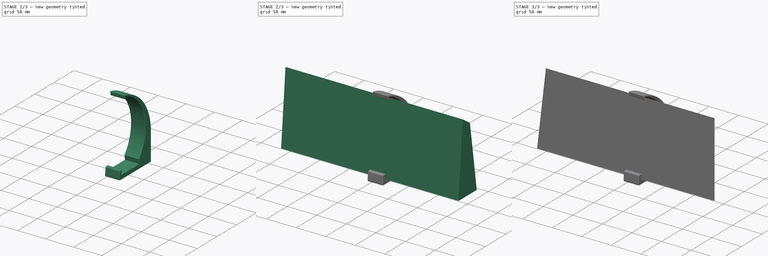
[diagram: build sequence overview — one tinted view per stage of 3, left to right]
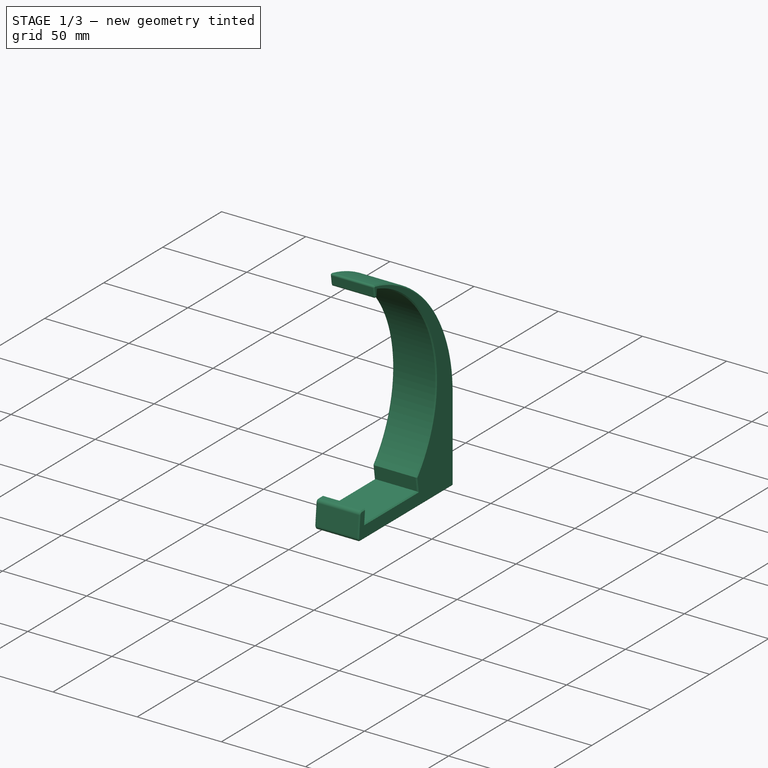
[diagram: stage 1 of 3 — iso view after this stage's code; geometry added in this stage tinted green]
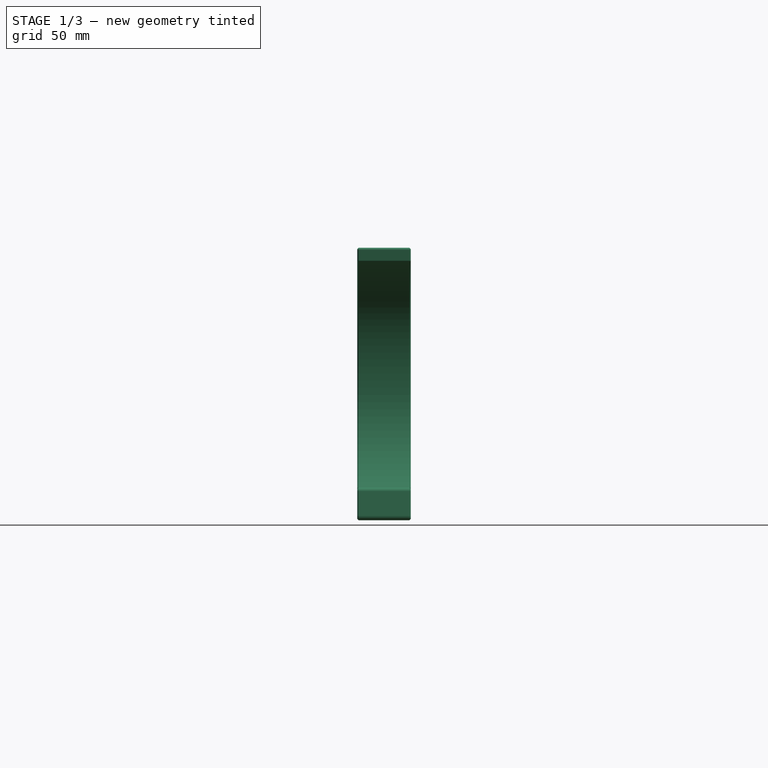
[diagram: stage 1 of 3 — front view after this stage's code; geometry added in this stage tinted green]
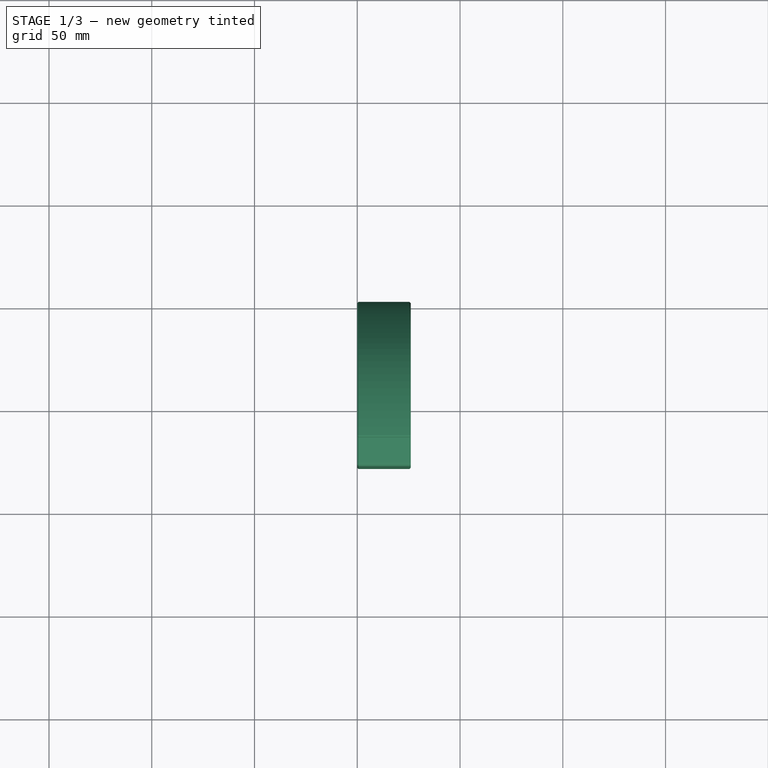
[diagram: stage 1 of 3 — top view after this stage's code; geometry added in this stage tinted green]
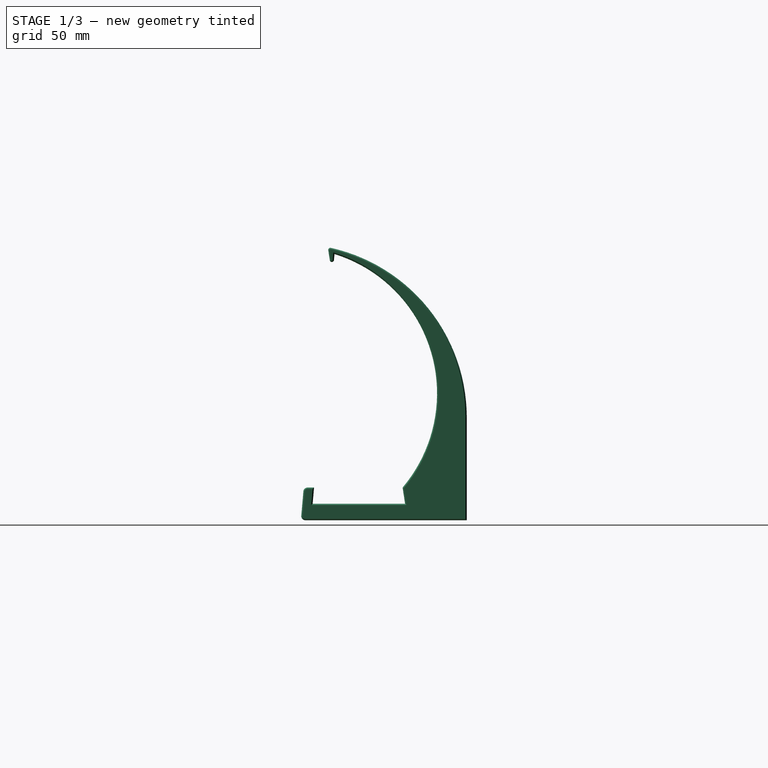
[diagram: stage 1 of 3 — right view after this stage's code; geometry added in this stage tinted green]
FCSTD DOCUMENT  (FreeCAD 0.22R36677 (Git))
Label: starlink gen3 wall mount
License: All rights reserved
LicenseURL: http://en.wikipedia.org/wiki/All_rights_reserved
objects: Sketcher::SketchObject×5, PartDesign::Pocket×3, PartDesign::Pad×2, PartDesign::Body×2, PartDesign::Mirrored×1, Spreadsheet::Sheet×1, PartDesign::Chamfer×1
note: 20 computed .brp shape members not serialized (recipe doc carries the construction recipe); baked Part::Feature solids carry a one-line shape summary decoded from their .brp

FEATURE [PartDesign::Body] Body  label="starlink gen3 router proxy"
  Group = -> [Sketch,Pad,Sketch001,Pocket,Mirrored]
  Origin = -> Origin
  Tip = -> Mirrored
FEATURE [Spreadsheet::Sheet] Spreadsheet  label="q"
  cells = A2='router front length; B2(router_front_length)=121; A3='router front angle; B3(router_front_angle)=85; A4='router back length; B4(router_back_length)=110; A5='router back angle; B5(router_back_angle)=81.4; A6='router base width; B6(router_base_width)=300; A7='router base depth; B7(router_base_depth)=44; A9='fudge; B9(fudge)=1; A10='mount bottom thickness; B10(mount_bottom_thickness)=8; A11='mount back thickness; B11(mount_back_thickness)=8; A12='mount base overlap; B12(mount_base_overlap)=8; A13='mount_top_overlap; B13(mount_top_overlap)=3; A14='mount back allowance; B14(mount_back_allowance)=30; A16='screw hole diameter; B16(screw_hole_diameter)=4.5; A17='screw head diameter; B17(screw_head_diameter)=8.5; A18='screw to wall depth; B18(screw_to_wall_depth)=5
FEATURE [Sketcher::SketchObject] Sketch007
  AttachmentSupport = -> [YZ_Plane003]
  FullyConstrained = true
  MapMode = 5
  Placement = pos=(0,0,0) rot=(0.57735,0.57735,0.57735;2.0944rad)
  expr: Constraints[14] = <<q>>.mount_back_allowance
  expr: Constraints[16] = <<q>>.mount_base_overlap
  expr: Constraints[27] = <<q>>.mount_bottom_thickness
  expr: Constraints[32] = <<q>>.mount_top_overlap
  expr: Constraints[35] = <<q>>.mount_top_overlap
  expr: Constraints[36] = <<q>>.mount_top_overlap
  expr: Constraints[5] = <<q>>.router_front_length + <<q>>.fudge
  expr: Constraints[6] = <<q>>.router_back_length + <<q>>.fudge
  expr: Constraints[7] = <<q>>.router_back_angle
  expr: Constraints[8] = <<q>>.router_front_angle
  expr: Constraints[9] = <<q>>.router_base_depth + <<q>>.fudge
  sketch-geometry (25):
    g0: LineSegment StartX=-22.5 StartY=-5.7e-15 StartZ=0 EndX=22.5 EndY=-5.7e-15 EndZ=0
    g1: LineSegment StartX=22.5 StartY=-5.7e-15 StartZ=0 EndX=5.90158 EndY=109.752 EndZ=0
    g2: LineSegment StartX=5.90158 StartY=109.752 StartZ=0 EndX=-11.867 EndY=121.536 EndZ=0
    g3: LineSegment StartX=-11.867 StartY=121.536 StartZ=0 EndX=-22.5 EndY=-5.7e-15 EndZ=0
    g4: LineSegment StartX=52.5 StartY=0 StartZ=0 EndX=52.5 EndY=120 EndZ=0
    g5: GeomPoint X=21.3037 Y=7.91005 Z=0
    g6: ArcOfCircle CenterX=-32.9304 CenterY=53.7321 CenterZ=0 NormalX=0 NormalY=0 NormalZ=1 AngleXU=0 Radius=71 StartAngle=5.58166 EndAngle=7.55278
    g7: GeomPoint X=-22.5 Y=-5.7e-15 Z=0
    g8: GeomPoint X=-21.808 Y=7.91005 Z=0
    g9: LineSegment StartX=-21.808 StartY=7.91005 StartZ=0 EndX=-24.9753 EndY=7.91005 EndZ=0
    g10: LineSegment StartX=-26.9677 StartY=6.08436 StartZ=0 EndX=-28.0097 EndY=-5.82569 EndZ=0
    g11: LineSegment StartX=-26.0173 StartY=-8 StartZ=0 EndX=52.5 EndY=-8 EndZ=0
    g12: LineSegment StartX=52.5 StartY=-8 StartZ=0 EndX=52.5 EndY=42 EndZ=0
    g13: LineSegment StartX=-11.867 StartY=121.536 StartZ=0 EndX=-12.1295 EndY=118.536 EndZ=0
    g14: ArcOfCircle CenterX=-13.1257 CenterY=118.623 CenterZ=0 NormalX=0 NormalY=0 NormalZ=1 AngleXU=0 Radius=1 StartAngle=3.29291 EndAngle=6.19592
    g15: LineSegment StartX=-14.1142 StartY=118.472 StartZ=0 EndX=-14.867 EndY=123.409 EndZ=0
    g16: ArcOfCircle CenterX=-13.8784 CenterY=123.56 CenterZ=0 NormalX=0 NormalY=0 NormalZ=1 AngleXU=0 Radius=1 StartAngle=1.35143 EndAngle=3.29291
    g17: LineSegment StartX=-21.808 StartY=7.91005 StartZ=0 EndX=-22.5 EndY=-5e-15 EndZ=0
    g18: LineSegment StartX=-22.5 StartY=-5.7e-15 StartZ=0 EndX=22.5 EndY=-5.7e-15 EndZ=0
    g19: LineSegment StartX=22.5 StartY=-5.7e-15 StartZ=0 EndX=21.3037 EndY=7.91005 EndZ=0
    g20: ArcOfCircle CenterX=-24.9753 CenterY=5.91005 CenterZ=0 NormalX=0 NormalY=0 NormalZ=1 AngleXU=0 Radius=2 StartAngle=1.5708 EndAngle=3.05433
    g21: GeomPoint X=-26.808 Y=7.91005 Z=0
    g22: ArcOfCircle CenterX=-26.0173 CenterY=-6 CenterZ=0 NormalX=0 NormalY=0 NormalZ=1 AngleXU=0 Radius=2 StartAngle=3.05433 EndAngle=4.71239
    g23: GeomPoint X=-28.1999 Y=-8 Z=0
    g24: ArcOfCircle CenterX=-32.0622 CenterY=42 CenterZ=0 NormalX=0 NormalY=0 NormalZ=1 AngleXU=0 Radius=84.5622 StartAngle=0 EndAngle=1.35143
  constraints (61):
    c: Horizontal(g0)
    c: Coincident(g0,g1)
    c: Coincident(g1,g2)
    c: Coincident(g2,g3)
    c: Coincident(g3,g0)
    c: Distance(g3,g3) = 122
    c: Distance(g1,g1) = 111
    c: Angle(g1,g0) = 1.4207
    c: Angle(g0,g3) = 1.48353
    c: DistanceX(g0,g0) = 45
    c: Symmetric(g0,g0,g-1)
    c: PointOnObject(g4,g-1)
    c: Vertical(g4)
    c: DistanceY(g4,g4) = 120
    c: DistanceX(g0,g4) = 30
    c: PointOnObject(g5,g1)
    c: Distance(g5,g0) = 8
    c: Coincident(g6,g2)
    c: Coincident(g6,g5)
    c: Coincident(g7,g0)
    c: PointOnObject(g8,g3)
    c: Horizontal(g8,g6)
    c: Coincident(g9,g8)
    c: Horizontal(g11)
    c: Coincident(g11,g12)
    c: PointOnObject(g12,g4)
    c: Vertical(g12)
    c: DistanceY(g11,g-1) = 8
    c: Parallel(g3,g10)
    c: Coincident(g6,g13)
    c: Tangent(g13,g14) = 1.5708
    c: PointOnObject(g13,g3)
    c: DistanceY(g13,g6) = 3
    c: Diameter(g14) = 2
    c: Tangent(g15,g16) = 1.5708
    c: DistanceY(g6,g16) = 3
    c: DistanceX(g15,g6) = 3
    c: Diameter(g16) = 2
    c: Coincident(g9,g17)
    c: Coincident(g17,g0)
    c: Coincident(g17,g18)
    c: Coincident(g18,g0)
    c: Coincident(g18,g19)
    c: Coincident(g19,g6)
    c: DistanceX(g21,g9) = 5
    c: Horizontal(g9)
    c: Tangent(g14,g15) = 1.5708
    c: PointOnObject(g21,g9)
    c: PointOnObject(g21,g10)
    c: Tangent(g9,g20) = -1.5708
    c: Tangent(g10,g20) = -1.5708
    c: PointOnObject(g23,g10)
    c: PointOnObject(g23,g11)
    c: Tangent(g10,g22) = -1.5708
    c: Tangent(g11,g22) = -1.5708
    c: Diameter(g22) = 4
    c: Diameter(g20) = 4
    c: Tangent(g24,g16) = -1.5708
    c: Tangent(g24,g12) = -1.5708
    c: DistanceY(g12,g12) = 50
    c: Diameter(g6) = 142
FEATURE [PartDesign::Pad] Pad002
  Direction = (1,0,0)
  Length = 26
  Length2 = 10
  Placement = pos=(0,0,0) rot=(1,1,1;2.0944rad)
  Profile = -> Sketch007
  ReferenceAxis = -> Sketch007 [N_Axis]
  Suppressed = false
  Type = 0
FEATURE [PartDesign::Chamfer] Chamfer001
  Angle = 45
  Base = -> Pad002 [Face17,Face16]
  BaseFeature = -> Pad002
  ChamferType = 0
  FlipDirection = false
  Placement = pos=(0,0,0) rot=(1,1,1;2.0944rad)
  Size = 0.6
  Size2 = 1
  SupportTransform = false
  Suppressed = false
  UseAllEdges = false
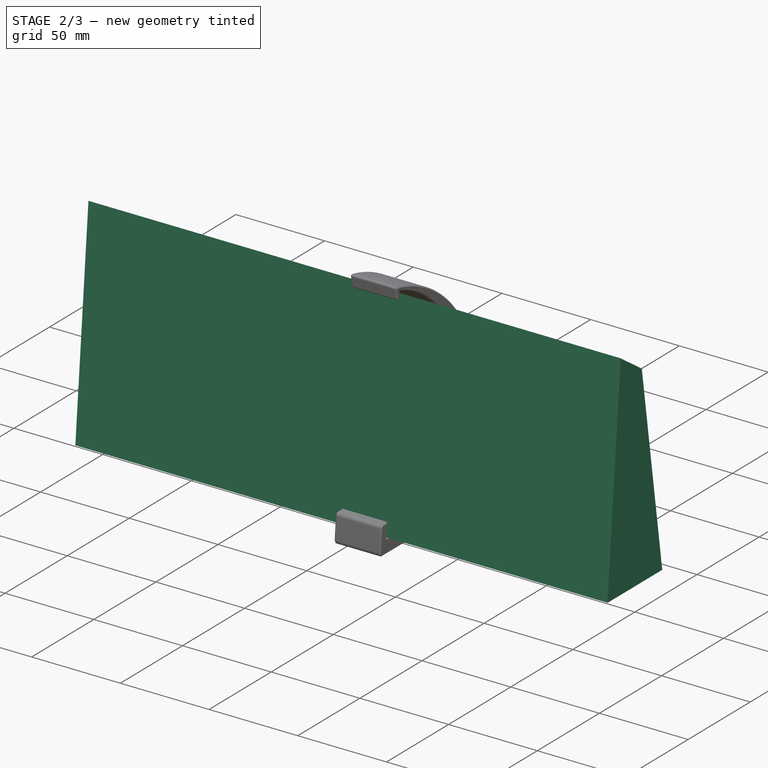
[diagram: stage 2 of 3 — iso view after this stage's code; geometry added in this stage tinted green]
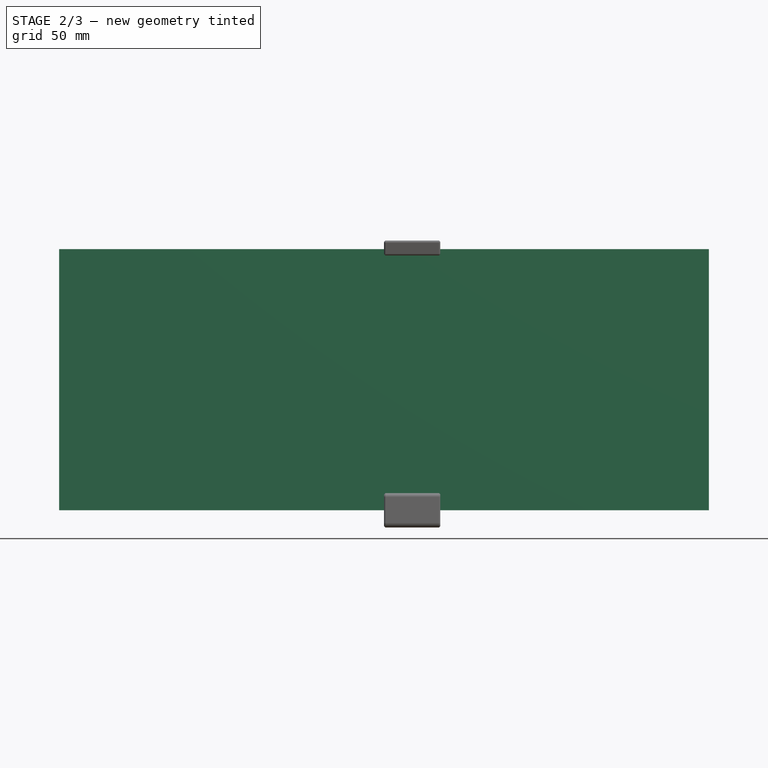
[diagram: stage 2 of 3 — front view after this stage's code; geometry added in this stage tinted green]
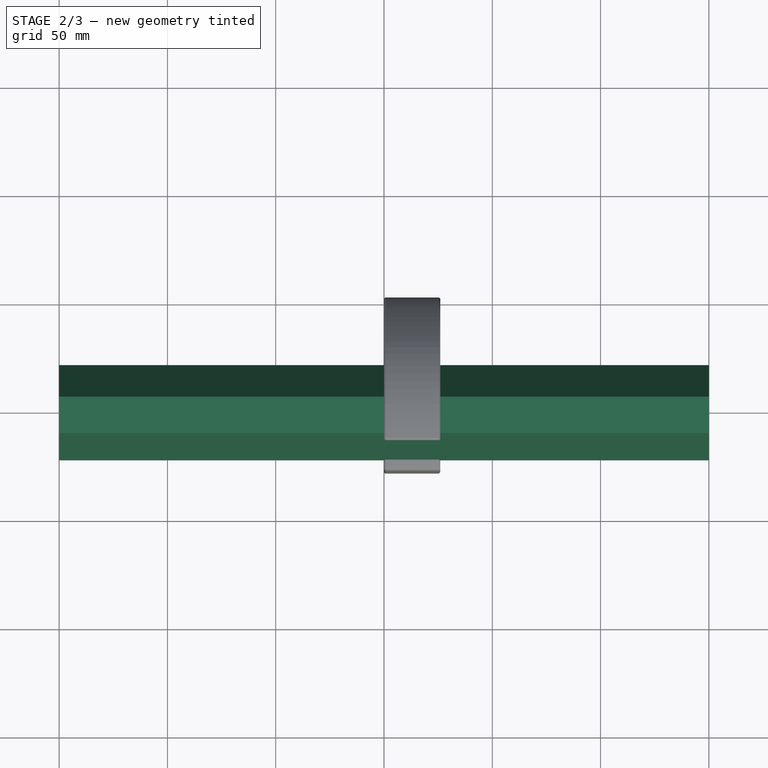
[diagram: stage 2 of 3 — top view after this stage's code; geometry added in this stage tinted green]
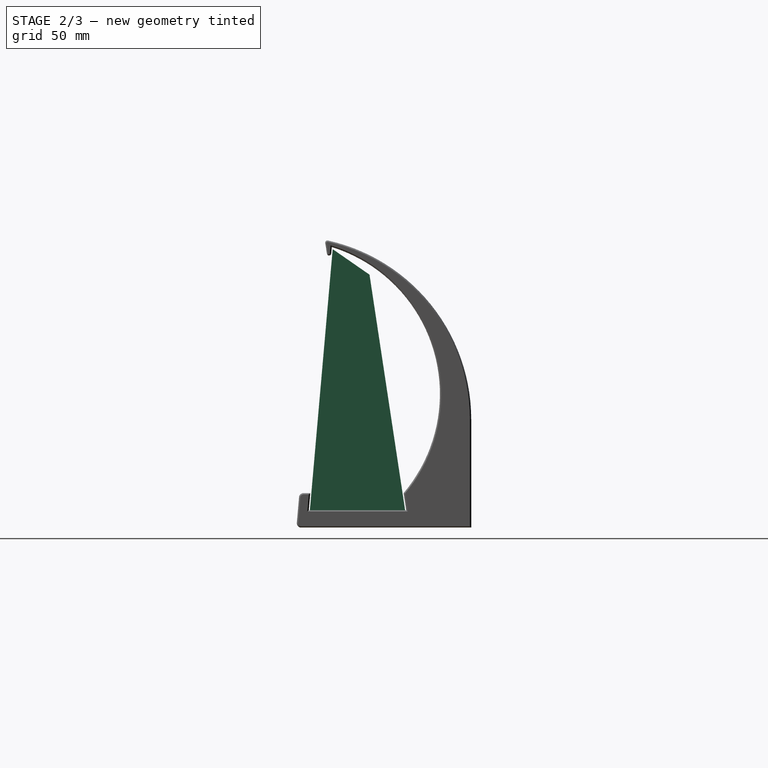
[diagram: stage 2 of 3 — right view after this stage's code; geometry added in this stage tinted green]
FEATURE [Sketcher::SketchObject] Sketch
  AttachmentSupport = -> [YZ_Plane]
  FullyConstrained = true
  MapMode = 5
  Placement = pos=(0,0,0) rot=(0.57735,0.57735,0.57735;2.0944rad)
  expr: Constraints[5] = <<q>>.router_base_depth
  expr: Constraints[6] = <<q>>.router_front_length
  expr: Constraints[7] = <<q>>.router_back_length
  expr: Constraints[8] = <<q>>.router_back_angle
  expr: Constraints[9] = <<q>>.router_front_angle
  sketch-geometry (4):
    g0: LineSegment StartX=-22 StartY=-2.1e-15 StartZ=0 EndX=22 EndY=-2.1e-15 EndZ=0
    g1: LineSegment StartX=22 StartY=-2.1e-15 StartZ=0 EndX=5.55111 EndY=108.763 EndZ=0
    g2: LineSegment StartX=5.55111 StartY=108.763 StartZ=0 EndX=-11.4542 EndY=120.54 EndZ=0
    g3: LineSegment StartX=-11.4542 StartY=120.54 StartZ=0 EndX=-22 EndY=-2.1e-15 EndZ=0
  constraints (11):
    c: Horizontal(g0)
    c: Coincident(g0,g1)
    c: Coincident(g1,g2)
    c: Coincident(g2,g3)
    c: Coincident(g3,g0)
    c: DistanceX(g0,g0) = 44
    c: Distance(g3,g3) = 121
    c: Distance(g1,g1) = 110
    c: Angle(g1,g0) = 1.4207
    c: Angle(g0,g3) = 1.48353
    c: Symmetric(g0,g0,g-1)
FEATURE [PartDesign::Pad] Pad
  Direction = (1,0,0)
  Length = 300
  Length2 = 10
  Midplane = true
  Placement = pos=(0,0,0) rot=(1,1,1;2.0944rad)
  Profile = -> Sketch
  ReferenceAxis = -> Sketch [N_Axis]
  Suppressed = false
  Type = 0
FEATURE [Sketcher::SketchObject] Sketch008
  AttachmentSupport = -> [Chamfer001]
  ExternalGeometry = -> [Chamfer001]
  FullyConstrained = true
  MapMode = 5
  Placement = pos=(1.17e-14,52.5,-5.8e-15) rot=(0.57735,0.57735,0.57735;4.18879rad)
  expr: Constraints[1] = <<q>>.screw_hole_diameter
  sketch-geometry (3):
    g0: Circle CenterX=37.3657 CenterY=13.3 CenterZ=0 NormalX=0 NormalY=0 NormalZ=1 AngleXU=0 Radius=2.25
    g1: Circle CenterX=12.3657 CenterY=13.3 CenterZ=0 NormalX=0 NormalY=0 NormalZ=1 AngleXU=0 Radius=2.25
    g2: GeomPoint X=24.8657 Y=13.3 Z=0
  constraints (6):
    c: Equal(g0,g1)
    c: Diameter(g0) = 4.5
    c: DistanceX(g1,g0) = 25
    c: Symmetric(g-3,g-4,g2)
    c: Horizontal(g0,g1)
    c: Symmetric(g1,g0,g2)
FEATURE [PartDesign::Pocket] Pocket003
  BaseFeature = -> Chamfer001
  Direction = (0,-1,0)
  Length = 5
  Length2 = 5
  Placement = pos=(0,0,0) rot=(1,1,1;2.0944rad)
  Profile = -> Sketch008
  ReferenceAxis = -> Sketch008 [N_Axis]
  Suppressed = false
  Type = 1
FEATURE [Sketcher::SketchObject] Sketch009
  AttachmentOffset = pos=(0,0,-6) rot=(0,0,1;0rad)
  AttachmentSupport = -> [Pocket003]
  ExternalGeometry = -> [Pocket003]
  FullyConstrained = true
  MapMode = 5
  Placement = pos=(1.17e-14,46.5,-2.33e-14) rot=(0.57735,0.57735,0.57735;4.18879rad)
  expr: Constraints[1] = <<q>>.screw_head_diameter
  sketch-geometry (2):
    g0: Circle CenterX=12.3657 CenterY=13.3 CenterZ=0 NormalX=0 NormalY=0 NormalZ=1 AngleXU=0 Radius=4.25
    g1: Circle CenterX=37.3657 CenterY=13.3 CenterZ=0 NormalX=0 NormalY=0 NormalZ=1 AngleXU=0 Radius=4.25
  constraints (4):
    c: Equal(g0,g1)
    c: Diameter(g0) = 8.5
    c: Coincident(g0,g-3)
    c: Coincident(g1,g-4)
FEATURE [PartDesign::Pocket] Pocket004
  BaseFeature = -> Pocket003
  Direction = (0,-1,0)
  Length = 5
  Length2 = 5
  Placement = pos=(0,0,0) rot=(1,1,1;2.0944rad)
  Profile = -> Sketch009
  ReferenceAxis = -> Sketch009 [N_Axis]
  Suppressed = false
  Type = 0
  expr: Length = <<q>>.screw_to_wall_depth
FEATURE [PartDesign::Body] Body003  label="router mount"
  Group = -> [Sketch007,Pad002,Chamfer001,Sketch008,Pocket003,Sketch009,Pocket004]
  Origin = -> Origin003
  Tip = -> Pocket004
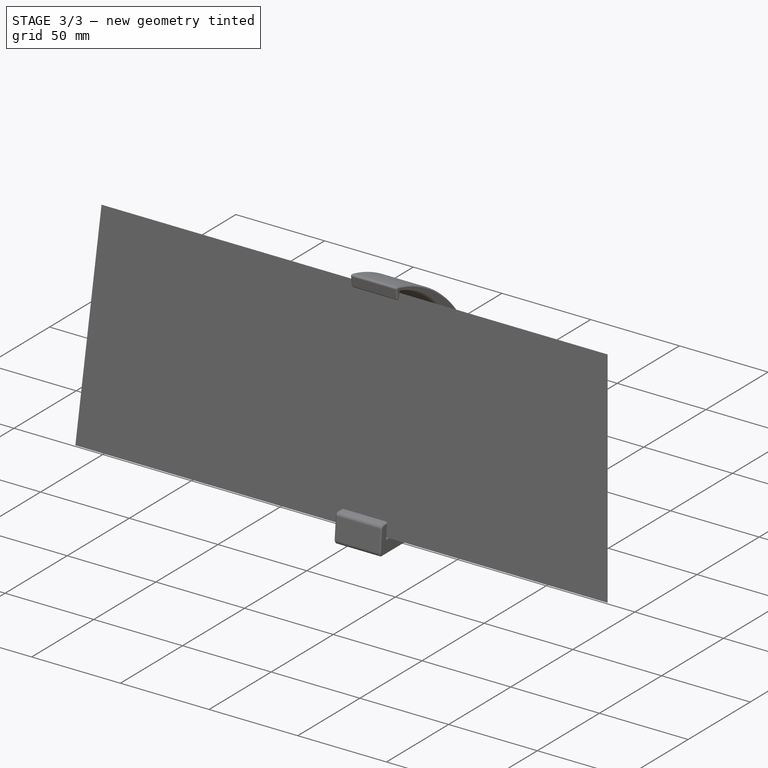
[diagram: stage 3 of 3 — iso view after this stage's code; geometry added in this stage tinted green]
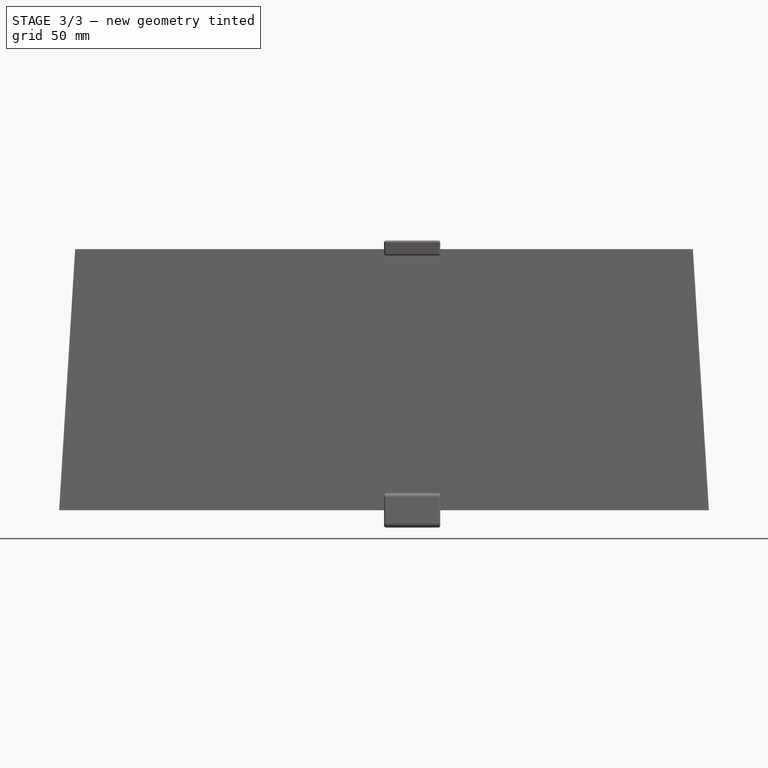
[diagram: stage 3 of 3 — front view after this stage's code; geometry added in this stage tinted green]
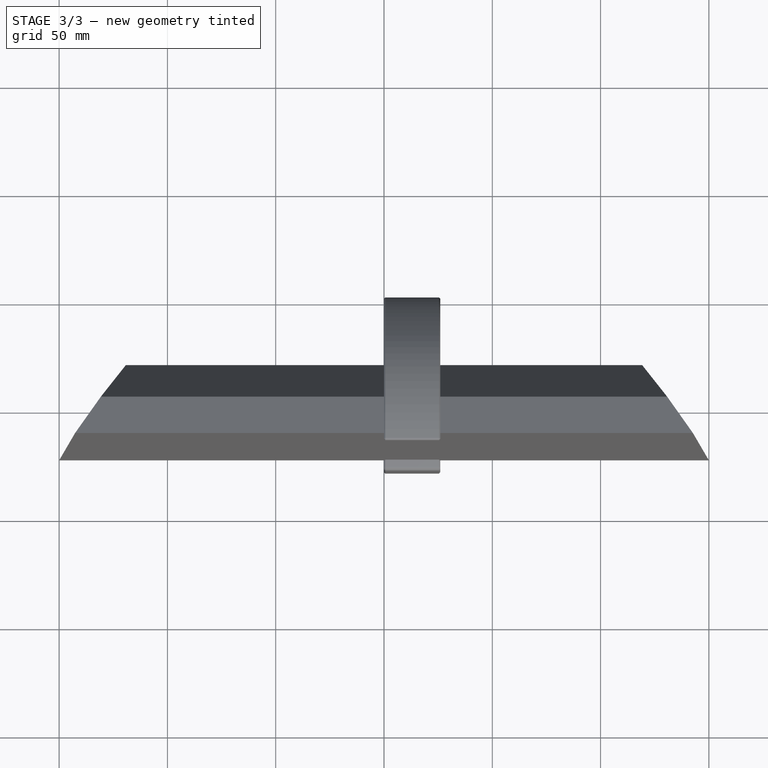
[diagram: stage 3 of 3 — top view after this stage's code; geometry added in this stage tinted green]
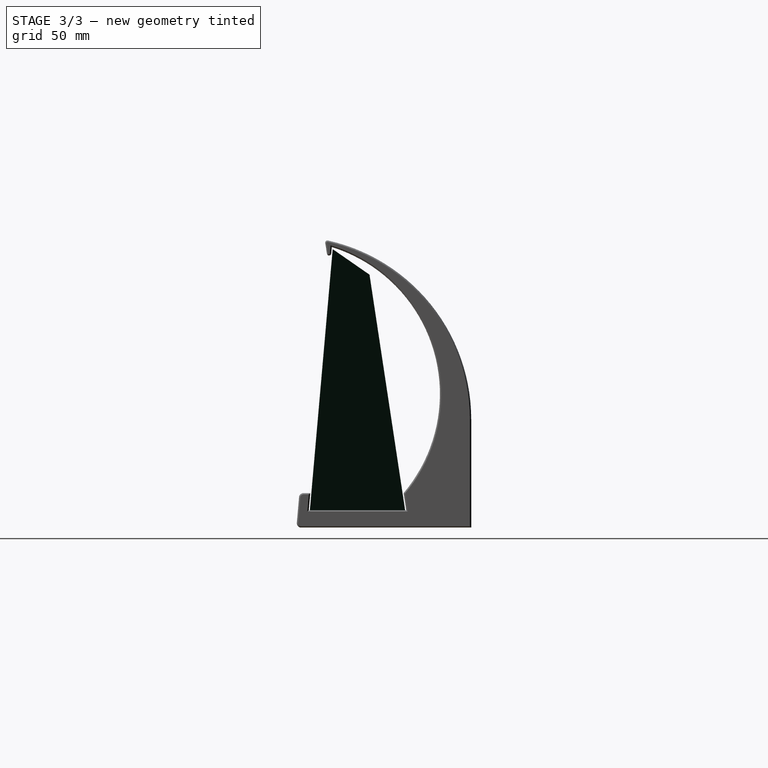
[diagram: stage 3 of 3 — right view after this stage's code; geometry added in this stage tinted green]
FEATURE [Sketcher::SketchObject] Sketch001
  ExternalGeometry = -> [Pad]
  FullyConstrained = true
  sketch-geometry (3):
    g0: LineSegment StartX=150 StartY=-22 StartZ=0 EndX=150 EndY=38 EndZ=0
    g1: LineSegment StartX=150 StartY=38 StartZ=0 EndX=107.988 EndY=38 EndZ=0
    g2: LineSegment StartX=107.988 StartY=38 StartZ=0 EndX=150 EndY=-22 EndZ=0
  constraints (8):
    c: Vertical(g0)
    c: Coincident(g0,g1)
    c: Horizontal(g1)
    c: Coincident(g1,g2)
    c: Coincident(g2,g0)
    c: Angle(g0,g2) = 0.610865
    c: DistanceY(g0,g0) = 60
    c: Coincident(g-3,g0)
FEATURE [PartDesign::Pocket] Pocket
  BaseFeature = -> Pad
  Direction = (0,0,-1)
  Length = 5
  Length2 = 5
  Placement = pos=(0,0,0) rot=(1,1,1;2.0944rad)
  Profile = -> Sketch001
  ReferenceAxis = -> Sketch001 [N_Axis]
  Reversed = true
  Suppressed = false
  Type = 1
FEATURE [PartDesign::Mirrored] Mirrored
  BaseFeature = -> Pocket
  MirrorPlane = -> Sketch001 [V_Axis]
  Originals = -> [Pocket]
  Placement = pos=(0,0,0) rot=(1,1,1;2.0944rad)
  Suppressed = false
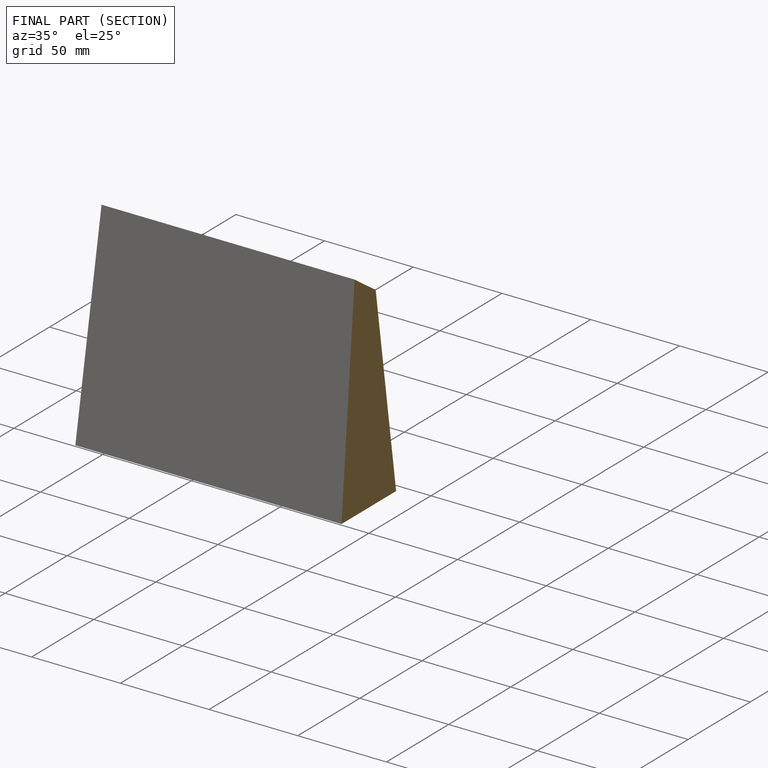
[diagram: finished part — half-section view (interior)]
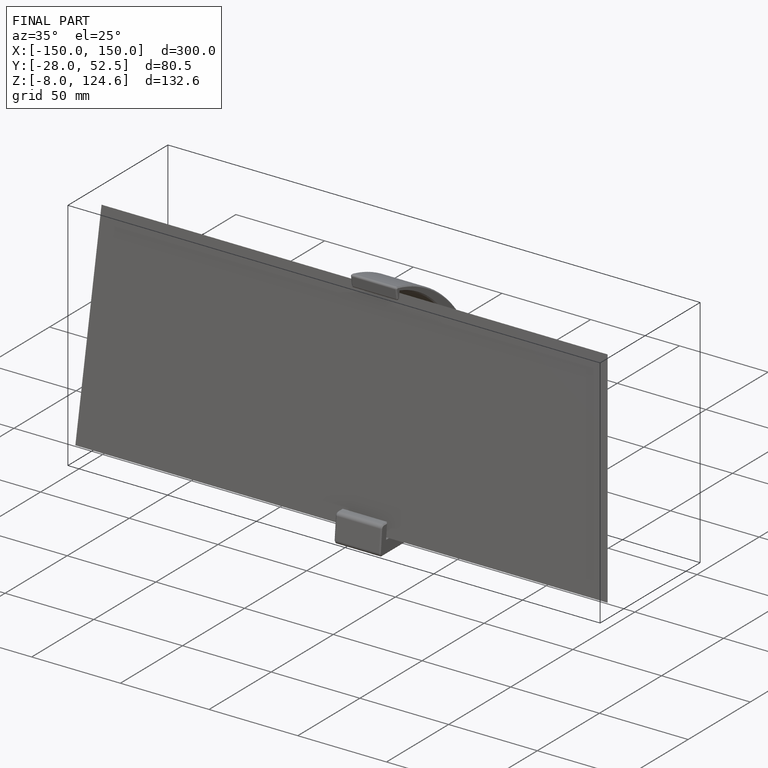
[diagram: finished part — iso view with bounding-box wireframe]
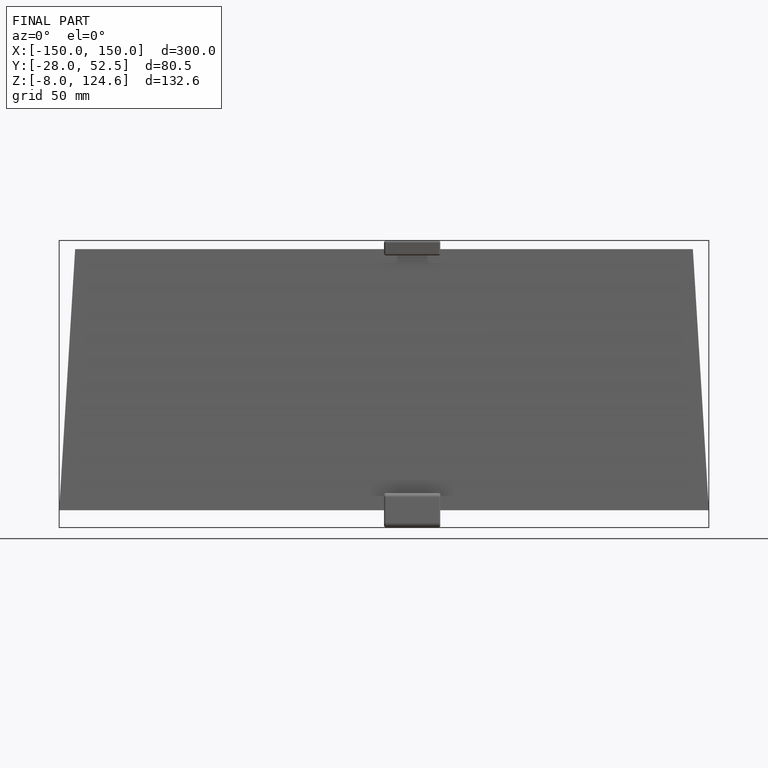
[diagram: finished part — front view with bounding-box wireframe]
